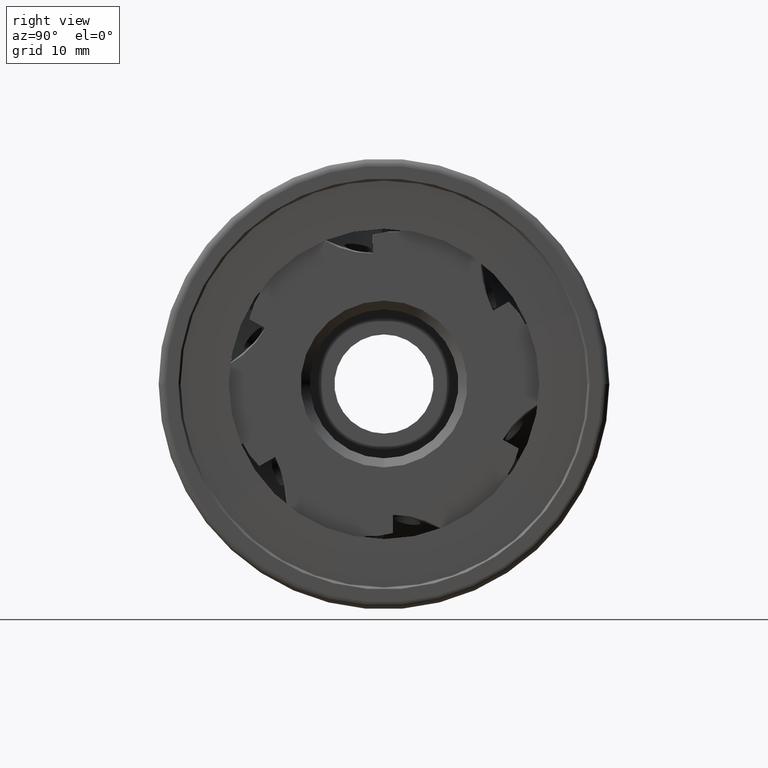
[diagram: clean part render]
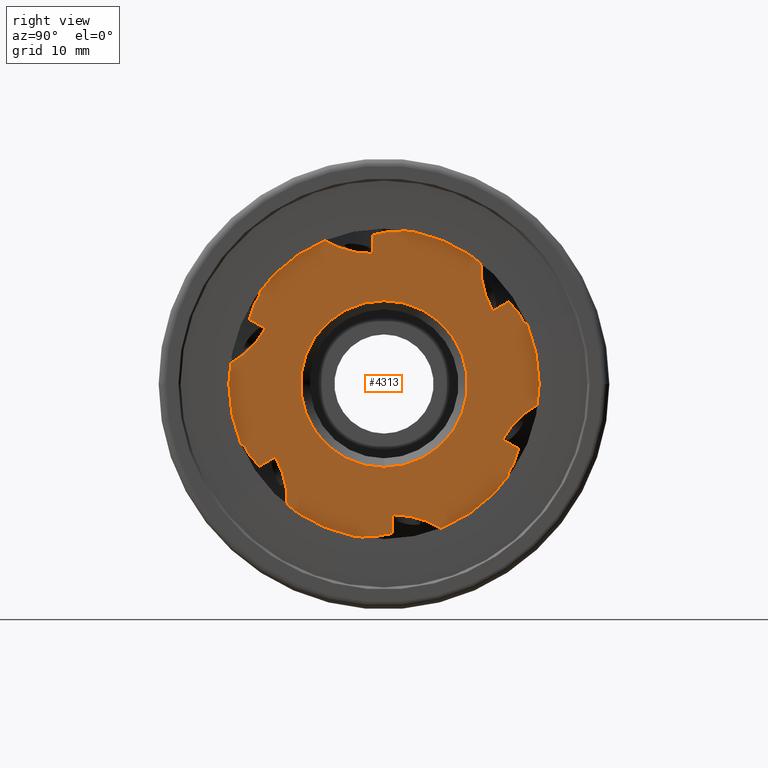
[diagram: same view with one face highlighted and labeled with its STEP entity id]
A machine part, right view. The second image highlights one B-rep face of the part: STEP entity #4313.
In plain terms, the highlighted planar face has unit normal (-1, 0, 0).
Its self-contained STEP definition (entity closure, byte-faithful):
#22 = CARTESIAN_POINT ( 'NONE',  ( -1.000000000000000900, 6.385925097127166200, -16.07232686650820600 ) ) ;
#28 = CARTESIAN_POINT ( 'NONE',  ( -1.000000000000000200, -2.129258213089093600, -16.85248515329511000 ) ) ;
#30 = CARTESIAN_POINT ( 'NONE',  ( -0.9999999999999985600, -13.15835158195599600, 6.170352790096157700 ) ) ;
#33 = CARTESIAN_POINT ( 'NONE',  ( -0.9999999999999993300, -12.06607671322673700, -8.100942084667609700 ) ) ;
#42 = CARTESIAN_POINT ( 'NONE',  ( -0.9999999999999974500, 0.9825832832952841000, -16.55157498790027800 ) ) ;
#46 = CARTESIAN_POINT ( 'NONE',  ( -0.9999999999999974500, 0.9825832832952838800, -14.50000000000000000 ) ) ;
#51 = CARTESIAN_POINT ( 'NONE',  ( -0.9999999999999993300, -15.92815803758898200, -6.737470725694436200 ) ) ;
#57 = CARTESIAN_POINT ( 'NONE',  ( -1.000000000000001600, -17.15313173829381200, 2.206762746363438500 ) ) ;
#63 = CARTESIAN_POINT ( 'NONE',  ( -1.000000000000000200, -10.72608081575969900, -13.56653679403081000 ) ) ;
#104 = VERTEX_POINT ( 'NONE', #22 ) ;
#106 = VERTEX_POINT ( 'NONE', #33 ) ;
#113 = VERTEX_POINT ( 'NONE', #28 ) ;
#123 = VERTEX_POINT ( 'NONE', #46 ) ;
#140 = VERTEX_POINT ( 'NONE', #63 ) ;
#142 = VERTEX_POINT ( 'NONE', #57 ) ;
#147 = VERTEX_POINT ( 'NONE', #30 ) ;
#154 = VERTEX_POINT ( 'NONE', #42 ) ;
#155 = VERTEX_POINT ( 'NONE', #51 ) ;
#161 = VERTEX_POINT ( 'NONE', #2051 ) ;
#167 = VERTEX_POINT ( 'NONE', #2060 ) ;
#247 = EDGE_CURVE ( 'NONE', #3144, #3235, #1856, .T. ) ;
#266 = EDGE_CURVE ( 'NONE', #3296, #3280, #1866, .T. ) ;
#271 = EDGE_CURVE ( 'NONE', #1794, #1759, #1879, .T. ) ;
#272 = EDGE_CURVE ( 'NONE', #3296, #3171, #1877, .T. ) ;
#273 = EDGE_CURVE ( 'NONE', #3280, #3261, #3841, .T. ) ;
#274 = EDGE_CURVE ( 'NONE', #3261, #3266, #1881, .T. ) ;
#275 = EDGE_CURVE ( 'NONE', #3272, #3266, #1885, .T. ) ;
#276 = EDGE_CURVE ( 'NONE', #3264, #3272, #1884, .T. ) ;
#277 = EDGE_CURVE ( 'NONE', #3293, #3264, #1882, .T. ) ;
#278 = EDGE_CURVE ( 'NONE', #3293, #3127, #1887, .T. ) ;
#279 = EDGE_CURVE ( 'NONE', #3127, #3168, #3647, .T. ) ;
#280 = EDGE_CURVE ( 'NONE', #3168, #3222, #1889, .T. ) ;
#281 = EDGE_CURVE ( 'NONE', #3265, #3222, #1894, .T. ) ;
#282 = EDGE_CURVE ( 'NONE', #3287, #3265, #1893, .T. ) ;
#283 = EDGE_CURVE ( 'NONE', #3257, #3287, #1891, .T. ) ;
#284 = EDGE_CURVE ( 'NONE', #3257, #3288, #1896, .T. ) ;
#285 = EDGE_CURVE ( 'NONE', #3288, #3277, #3860, .T. ) ;
#286 = EDGE_CURVE ( 'NONE', #3277, #3276, #1898, .T. ) ;
#287 = EDGE_CURVE ( 'NONE', #3268, #3276, #1903, .T. ) ;
#288 = EDGE_CURVE ( 'NONE', #3273, #3268, #1902, .T. ) ;
#289 = EDGE_CURVE ( 'NONE', #3247, #3273, #1900, .T. ) ;
#290 = EDGE_CURVE ( 'NONE', #3247, #147, #1905, .T. ) ;
#291 = EDGE_CURVE ( 'NONE', #147, #142, #3633, .T. ) ;
#292 = EDGE_CURVE ( 'NONE', #142, #155, #1910, .T. ) ;
#293 = EDGE_CURVE ( 'NONE', #161, #155, #1911, .T. ) ;
#294 = EDGE_CURVE ( 'NONE', #3138, #161, #1907, .T. ) ;
#295 = EDGE_CURVE ( 'NONE', #3260, #3138, #1912, .T. ) ;
#296 = EDGE_CURVE ( 'NONE', #3260, #106, #1914, .T. ) ;
#297 = EDGE_CURVE ( 'NONE', #106, #140, #3899, .T. ) ;
#298 = EDGE_CURVE ( 'NONE', #140, #167, #1919, .T. ) ;
#299 = EDGE_CURVE ( 'NONE', #113, #167, #1920, .T. ) ;
#300 = EDGE_CURVE ( 'NONE', #3242, #113, #1916, .T. ) ;
#301 = EDGE_CURVE ( 'NONE', #154, #3242, #1921, .T. ) ;
#302 = EDGE_CURVE ( 'NONE', #154, #123, #1923, .T. ) ;
#303 = EDGE_CURVE ( 'NONE', #123, #104, #3855, .T. ) ;
#304 = EDGE_CURVE ( 'NONE', #104, #3235, #1927, .T. ) ;
#305 = EDGE_CURVE ( 'NONE', #3171, #3144, #1928, .T. ) ;
#1323 = AXIS2_PLACEMENT_3D ( 'NONE', #3723, #3725, #3726 ) ;
#1324 = AXIS2_PLACEMENT_3D ( 'NONE', #3738, #3740, #3741 ) ;
#1325 = AXIS2_PLACEMENT_3D ( 'NONE', #3760, #3761, #3762 ) ;
#1326 = AXIS2_PLACEMENT_3D ( 'NONE', #3782, #3783, #3784 ) ;
#1327 = AXIS2_PLACEMENT_3D ( 'NONE', #3802, #3803, #3804 ) ;
#1328 = AXIS2_PLACEMENT_3D ( 'NONE', #4044, #4046, #4048 ) ;
#1329 = AXIS2_PLACEMENT_3D ( 'NONE', #4061, #4062, #4063 ) ;
#1498 = AXIS2_PLACEMENT_3D ( 'NONE', #7499, #7500, #7501 ) ;
#1759 = VERTEX_POINT ( 'NONE', #6697 ) ;
#1794 = VERTEX_POINT ( 'NONE', #6732 ) ;
#1856 = LINE ( 'NONE', #3567, #1857 ) ;
#1857 = VECTOR ( 'NONE', #3568, 1000.000000000000200 ) ;
#1866 = LINE ( 'NONE', #3706, #1872 ) ;
#1872 = VECTOR ( 'NONE', #3709, 1000.000000000000200 ) ;
#1877 = LINE ( 'NONE', #3722, #1883 ) ;
#1879 = CIRCLE ( 'NONE', #1323, 9.250000000000005300 ) ;
#1881 = CIRCLE ( 'NONE', #1324, 17.29449999999999900 ) ;
#1882 = LINE ( 'NONE', #3734, #1890 ) ;
#1883 = VECTOR ( 'NONE', #3715, 1000.000000000000100 ) ;
#1884 = LINE ( 'NONE', #3737, #1888 ) ;
#1885 = LINE ( 'NONE', #3728, #1886 ) ;
#1886 = VECTOR ( 'NONE', #3731, 1000.000000000000000 ) ;
#1887 = LINE ( 'NONE', #3743, #1892 ) ;
#1888 = VECTOR ( 'NONE', #3744, 1000.000000000000000 ) ;
#1889 = CIRCLE ( 'NONE', #1325, 17.29449999999999900 ) ;
#1890 = VECTOR ( 'NONE', #3746, 1000.000000000000000 ) ;
#1891 = LINE ( 'NONE', #3758, #1899 ) ;
#1892 = VECTOR ( 'NONE', #3750, 1000.000000000000100 ) ;
#1893 = LINE ( 'NONE', #3759, #1897 ) ;
#1894 = LINE ( 'NONE', #3751, #1895 ) ;
#1895 = VECTOR ( 'NONE', #3753, 1000.000000000000200 ) ;
#1896 = LINE ( 'NONE', #3763, #1901 ) ;
#1897 = VECTOR ( 'NONE', #3765, 1000.000000000000100 ) ;
#1898 = CIRCLE ( 'NONE', #1326, 17.29449999999999900 ) ;
#1899 = VECTOR ( 'NONE', #3767, 1000.000000000000000 ) ;
#1900 = LINE ( 'NONE', #3780, #1908 ) ;
#1901 = VECTOR ( 'NONE', #3770, 1000.000000000000100 ) ;
#1902 = LINE ( 'NONE', #3781, #1906 ) ;
#1903 = LINE ( 'NONE', #3772, #1904 ) ;
#1904 = VECTOR ( 'NONE', #3775, 1000.000000000000100 ) ;
#1905 = LINE ( 'NONE', #3786, #1909 ) ;
#1906 = VECTOR ( 'NONE', #3787, 1000.000000000000100 ) ;
#1907 = LINE ( 'NONE', #3801, #1915 ) ;
#1908 = VECTOR ( 'NONE', #3789, 1000.000000000000100 ) ;
#1909 = VECTOR ( 'NONE', #3791, 1000.000000000000200 ) ;
#1910 = CIRCLE ( 'NONE', #1327, 17.29449999999999900 ) ;
#1911 = LINE ( 'NONE', #3794, #1913 ) ;
#1912 = LINE ( 'NONE', #3799, #1917 ) ;
#1913 = VECTOR ( 'NONE', #3793, 1000.000000000000200 ) ;
#1914 = LINE ( 'NONE', #3806, #1918 ) ;
#1915 = VECTOR ( 'NONE', #3807, 1000.000000000000100 ) ;
#1916 = LINE ( 'NONE', #4042, #1924 ) ;
#1917 = VECTOR ( 'NONE', #3810, 1000.000000000000100 ) ;
#1918 = VECTOR ( 'NONE', #4026, 1000.000000000000000 ) ;
#1919 = CIRCLE ( 'NONE', #1328, 17.29449999999999900 ) ;
#1920 = LINE ( 'NONE', #4032, #1922 ) ;
#1921 = LINE ( 'NONE', #4040, #1925 ) ;
#1922 = VECTOR ( 'NONE', #4030, 1000.000000000000000 ) ;
#1923 = LINE ( 'NONE', #4049, #1926 ) ;
#1924 = VECTOR ( 'NONE', #4050, 1000.000000000000100 ) ;
#1925 = VECTOR ( 'NONE', #4052, 1000.000000000000200 ) ;
#1926 = VECTOR ( 'NONE', #4054, 1000.000000000000000 ) ;
#1927 = CIRCLE ( 'NONE', #1329, 17.29449999999999900 ) ;
#1928 = LINE ( 'NONE', #4056, #1930 ) ;
#1930 = VECTOR ( 'NONE', #4055, 1000.000000000000200 ) ;
#2051 = CARTESIAN_POINT ( 'NONE',  ( -0.9999999999999993300, -15.65930936619821300, -6.582250872895707000 ) ) ;
#2060 = CARTESIAN_POINT ( 'NONE',  ( -0.9999999999999995600, -2.129258213089094000, -17.16292485889257000 ) ) ;
#2675 = ORIENTED_EDGE ( 'NONE', *, *, #286, .T. ) ;
#2679 = ORIENTED_EDGE ( 'NONE', *, *, #279, .T. ) ;
#2684 = ORIENTED_EDGE ( 'NONE', *, *, #302, .T. ) ;
#2697 = ORIENTED_EDGE ( 'NONE', *, *, #266, .T. ) ;
#2702 = ORIENTED_EDGE ( 'NONE', *, *, #277, .F. ) ;
#2706 = ORIENTED_EDGE ( 'NONE', *, *, #3968, .F. ) ;
#2714 = ORIENTED_EDGE ( 'NONE', *, *, #292, .T. ) ;
#2726 = ORIENTED_EDGE ( 'NONE', *, *, #272, .F. ) ;
#2745 = ORIENTED_EDGE ( 'NONE', *, *, #273, .T. ) ;
#2747 = ORIENTED_EDGE ( 'NONE', *, *, #295, .F. ) ;
#2749 = ORIENTED_EDGE ( 'NONE', *, *, #288, .F. ) ;
#2754 = ORIENTED_EDGE ( 'NONE', *, *, #293, .F. ) ;
#2764 = ORIENTED_EDGE ( 'NONE', *, *, #280, .T. ) ;
#2776 = ORIENTED_EDGE ( 'NONE', *, *, #304, .T. ) ;
#2778 = ORIENTED_EDGE ( 'NONE', *, *, #300, .F. ) ;
#2791 = ORIENTED_EDGE ( 'NONE', *, *, #296, .T. ) ;
#2795 = ORIENTED_EDGE ( 'NONE', *, *, #287, .F. ) ;
#2800 = ORIENTED_EDGE ( 'NONE', *, *, #290, .T. ) ;
#2810 = ORIENTED_EDGE ( 'NONE', *, *, #291, .T. ) ;
#2820 = ORIENTED_EDGE ( 'NONE', *, *, #281, .F. ) ;
#2822 = ORIENTED_EDGE ( 'NONE', *, *, #274, .T. ) ;
#2828 = ORIENTED_EDGE ( 'NONE', *, *, #301, .F. ) ;
#2831 = ORIENTED_EDGE ( 'NONE', *, *, #284, .T. ) ;
#2839 = ORIENTED_EDGE ( 'NONE', *, *, #282, .F. ) ;
#2841 = ORIENTED_EDGE ( 'NONE', *, *, #275, .F. ) ;
#2849 = ORIENTED_EDGE ( 'NONE', *, *, #298, .T. ) ;
#2852 = ORIENTED_EDGE ( 'NONE', *, *, #294, .F. ) ;
#2859 = ORIENTED_EDGE ( 'NONE', *, *, #271, .F. ) ;
#2865 = ORIENTED_EDGE ( 'NONE', *, *, #297, .T. ) ;
#2870 = ORIENTED_EDGE ( 'NONE', *, *, #299, .F. ) ;
#2872 = ORIENTED_EDGE ( 'NONE', *, *, #276, .F. ) ;
#2874 = ORIENTED_EDGE ( 'NONE', *, *, #247, .F. ) ;
#2877 = ORIENTED_EDGE ( 'NONE', *, *, #305, .F. ) ;
#2878 = ORIENTED_EDGE ( 'NONE', *, *, #303, .T. ) ;
#2882 = ORIENTED_EDGE ( 'NONE', *, *, #278, .T. ) ;
#2888 = ORIENTED_EDGE ( 'NONE', *, *, #283, .F. ) ;
#2890 = ORIENTED_EDGE ( 'NONE', *, *, #285, .T. ) ;
#2893 = ORIENTED_EDGE ( 'NONE', *, *, #289, .F. ) ;
#2932 = EDGE_LOOP ( 'NONE', ( #2859, #2706 ) ) ;
#3127 = VERTEX_POINT ( 'NONE', #6856 ) ;
#3138 = VERTEX_POINT ( 'NONE', #6857 ) ;
#3144 = VERTEX_POINT ( 'NONE', #6850 ) ;
#3168 = VERTEX_POINT ( 'NONE', #6863 ) ;
#3170 = EDGE_LOOP ( 'NONE', ( #2726, #2697, #2745, #2822, #2841, #2872, #2702, #2882, #2679, #2764, #2820, #2839, #2888, #2831, #2890, #2675, #2795, #2749, #2893, #2800, #2810, #2714, #2754, #2852, #2747, #2791, #2865, #2849, #2870, #2778, #2828, #2684, #2878, #2776, #2874, #2877 ) ) ;
#3171 = VERTEX_POINT ( 'NONE', #6855 ) ;
#3222 = VERTEX_POINT ( 'NONE', #6873 ) ;
#3235 = VERTEX_POINT ( 'NONE', #6867 ) ;
#3242 = VERTEX_POINT ( 'NONE', #6871 ) ;
#3247 = VERTEX_POINT ( 'NONE', #6875 ) ;
#3257 = VERTEX_POINT ( 'NONE', #6881 ) ;
#3260 = VERTEX_POINT ( 'NONE', #6884 ) ;
#3261 = VERTEX_POINT ( 'NONE', #6885 ) ;
#3264 = VERTEX_POINT ( 'NONE', #6882 ) ;
#3265 = VERTEX_POINT ( 'NONE', #6870 ) ;
#3266 = VERTEX_POINT ( 'NONE', #6887 ) ;
#3268 = VERTEX_POINT ( 'NONE', #6880 ) ;
#3272 = VERTEX_POINT ( 'NONE', #6892 ) ;
#3273 = VERTEX_POINT ( 'NONE', #6893 ) ;
#3276 = VERTEX_POINT ( 'NONE', #6896 ) ;
#3277 = VERTEX_POINT ( 'NONE', #6897 ) ;
#3280 = VERTEX_POINT ( 'NONE', #6900 ) ;
#3287 = VERTEX_POINT ( 'NONE', #6906 ) ;
#3288 = VERTEX_POINT ( 'NONE', #6907 ) ;
#3293 = VERTEX_POINT ( 'NONE', #6912 ) ;
#3296 = VERTEX_POINT ( 'NONE', #6915 ) ;
#3567 = CARTESIAN_POINT ( 'NONE',  ( -0.9999999999999995600, 12.19730949194626900, -9.195575094244887300 ) ) ;
#3568 = DIRECTION ( 'NONE',  ( 0.0000000000000000000, 0.8746197071393900800, -0.4848096202463473300 ) ) ;
#3633 =( BOUNDED_CURVE ( )  B_SPLINE_CURVE ( 3, ( #3790, #3788, #3795, #3797 ),
 .UNSPECIFIED., .F., .F. ) 
 B_SPLINE_CURVE_WITH_KNOTS ( ( 4, 4 ),
 ( 4.712388980384689700, 5.280781540201976700 ),
 .UNSPECIFIED. ) 
 CURVE ( )  GEOMETRIC_REPRESENTATION_ITEM ( )  RATIONAL_B_SPLINE_CURVE ( ( 1.000000000000000000, 0.9732582097140916000, 0.9732582097140916000, 1.000000000000000000 ) ) 
 REPRESENTATION_ITEM ( '' )  );
#3647 =( BOUNDED_CURVE ( )  B_SPLINE_CURVE ( 3, ( #3752, #3748, #3745, #3755 ),
 .UNSPECIFIED., .F., .F. ) 
 B_SPLINE_CURVE_WITH_KNOTS ( ( 4, 4 ),
 ( 4.712388980384689700, 5.280781540201976700 ),
 .UNSPECIFIED. ) 
 CURVE ( )  GEOMETRIC_REPRESENTATION_ITEM ( )  RATIONAL_B_SPLINE_CURVE ( ( 1.000000000000000000, 0.9732582097140916000, 0.9732582097140916000, 1.000000000000000000 ) ) 
 REPRESENTATION_ITEM ( '' )  );
#3706 = CARTESIAN_POINT ( 'NONE',  ( -0.9999999999999995600, 13.70596018607520400, -6.473897196012983600 ) ) ;
#3709 = DIRECTION ( 'NONE',  ( 0.0000000000000000000, -0.8746197071393901900, 0.4848096202463472200 ) ) ;
#3715 = DIRECTION ( 'NONE',  ( -0.0000000000000000000, -0.3111731523422361400, -0.9503532339406203200 ) ) ;
#3720 = CARTESIAN_POINT ( 'NONE',  ( -0.9999999999999991100, 15.46121502616972200, -3.126642390339627700 ) ) ;
#3721 = CARTESIAN_POINT ( 'NONE',  ( -0.9999999999999991100, 14.09303403149090700, -4.484141015121171100 ) ) ;
#3722 = CARTESIAN_POINT ( 'NONE',  ( -0.9999999999999995600, 17.29831140335493000, -0.001247963761729629200 ) ) ;
#3723 = CARTESIAN_POINT ( 'NONE',  ( -0.9999999999999988900, 0.0000000000000000000, 0.0000000000000000000 ) ) ;
#3725 = DIRECTION ( 'NONE',  ( 1.000000000000000000, -0.0000000000000000000, -0.0000000000000000000 ) ) ;
#3726 = DIRECTION ( 'NONE',  ( 0.0000000000000000000, 0.0000000000000000000, -1.000000000000000000 ) ) ;
#3728 = CARTESIAN_POINT ( 'NONE',  ( -0.9999999999999995600, 14.03550410654467000, 5.644746469123081300 ) ) ;
#3730 = CARTESIAN_POINT ( 'NONE',  ( -0.9999999999999993300, 13.15835158195595200, -6.170352790096257100 ) ) ;
#3731 = DIRECTION ( 'NONE',  ( 0.0000000000000000000, 0.8660254037844432600, 0.4999999999999920100 ) ) ;
#3732 = CARTESIAN_POINT ( 'NONE',  ( -1.000000000000000400, 17.15313173829379800, -2.206762746363572200 ) ) ;
#3734 = CARTESIAN_POINT ( 'NONE',  ( -0.9999999999999995600, 19.83673155912758900, 2.199825526165680100 ) ) ;
#3737 = CARTESIAN_POINT ( 'NONE',  ( -0.9999999999999995600, 18.92474102342494600, 0.9441985113748739800 ) ) ;
#3738 = CARTESIAN_POINT ( 'NONE',  ( -1.000000000000000000, 0.0000000000000000000, 0.0000000000000000000 ) ) ;
#3740 = DIRECTION ( 'NONE',  ( 1.000000000000000000, -0.0000000000000000000, -0.0000000000000000000 ) ) ;
#3741 = DIRECTION ( 'NONE',  ( 0.0000000000000000000, 0.0000000000000000000, -1.000000000000000000 ) ) ;
#3743 = CARTESIAN_POINT ( 'NONE',  ( -0.9999999999999995600, 12.47958335835250500, 8.339680257542548600 ) ) ;
#3744 = DIRECTION ( 'NONE',  ( 0.0000000000000000000, 0.5011852504991912700, -0.8653400168038358800 ) ) ;
#3745 = CARTESIAN_POINT ( 'NONE',  ( -0.9999999999999991100, 10.64317004083704400, 11.64250807190417100 ) ) ;
#3746 = DIRECTION ( 'NONE',  ( -0.0000000000000000000, 0.6543456949043681100, -0.7561955511374816000 ) ) ;
#3748 = CARTESIAN_POINT ( 'NONE',  ( -0.9999999999999991100, 11.10210816711997900, 9.770584583422873900 ) ) ;
#3750 = DIRECTION ( 'NONE',  ( 0.0000000000000000000, -0.8660254037844432600, -0.4999999999999921200 ) ) ;
#3751 = CARTESIAN_POINT ( 'NONE',  ( -0.9999999999999995600, 2.134201587809067700, -0.2646239931158446100 ) ) ;
#3752 = CARTESIAN_POINT ( 'NONE',  ( -0.9999999999999985600, 12.06607671322679400, 8.100942084667526200 ) ) ;
#3753 = DIRECTION ( 'NONE',  ( 0.0000000000000000000, -0.01745240643727678100, 0.9998476951563912700 ) ) ;
#3755 = CARTESIAN_POINT ( 'NONE',  ( -0.9999999999999995600, 10.72608081575979400, 13.56653679403073400 ) ) ;
#3758 = CARTESIAN_POINT ( 'NONE',  ( -0.9999999999999995600, 13.18121082715900400, 19.56963922418243500 ) ) ;
#3759 = CARTESIAN_POINT ( 'NONE',  ( -0.9999999999999995600, 16.97124249951800200, 17.17201727254457600 ) ) ;
#3760 = CARTESIAN_POINT ( 'NONE',  ( -1.000000000000000000, 0.0000000000000000000, 0.0000000000000000000 ) ) ;
#3761 = DIRECTION ( 'NONE',  ( 1.000000000000000000, -0.0000000000000000000, -0.0000000000000000000 ) ) ;
#3762 = DIRECTION ( 'NONE',  ( 0.0000000000000000000, 0.0000000000000000000, -1.000000000000000000 ) ) ;
#3763 = CARTESIAN_POINT ( 'NONE',  ( -0.9999999999999995600, -0.9771659600428632700, -0.3189331156791305200 ) ) ;
#3765 = DIRECTION ( 'NONE',  ( 0.0000000000000000000, 0.9998228630405489000, 0.01882133208356322500 ) ) ;
#3766 = CARTESIAN_POINT ( 'NONE',  ( -0.9999999999999991100, -5.022855774501521400, 14.95312618120645200 ) ) ;
#3767 = DIRECTION ( 'NONE',  ( -0.0000000000000000000, 0.9786166193323898600, 0.2056927620662533900 ) ) ;
#3769 = CARTESIAN_POINT ( 'NONE',  ( -0.9999999999999991100, -3.163136982498851800, 14.44699599523032100 ) ) ;
#3770 = DIRECTION ( 'NONE',  ( 0.0000000000000000000, 0.01745240643727690600, -0.9998476951563912700 ) ) ;
#3772 = CARTESIAN_POINT ( 'NONE',  ( -0.9999999999999995600, 14.26187922333464200, -5.470992704732564600 ) ) ;
#3773 = CARTESIAN_POINT ( 'NONE',  ( -0.9999999999999997800, -1.235493524442500500, 14.48064313694913200 ) ) ;
#3775 = DIRECTION ( 'NONE',  ( 0.0000000000000000000, -0.8746197071393935200, 0.4848096202463408900 ) ) ;
#3776 = CARTESIAN_POINT ( 'NONE',  ( -1.000000000000000700, -6.665453270671012100, 15.95842921300530800 ) ) ;
#3780 = CARTESIAN_POINT ( 'NONE',  ( -0.9999999999999995600, -13.94910243583745500, 10.23005963811380100 ) ) ;
#3781 = CARTESIAN_POINT ( 'NONE',  ( -0.9999999999999995600, -10.70328049485758400, 15.46934973310622800 ) ) ;
#3782 = CARTESIAN_POINT ( 'NONE',  ( -1.000000000000000000, 0.0000000000000000000, 0.0000000000000000000 ) ) ;
#3783 = DIRECTION ( 'NONE',  ( 1.000000000000000000, -0.0000000000000000000, -0.0000000000000000000 ) ) ;
#3784 = DIRECTION ( 'NONE',  ( 0.0000000000000000000, 0.0000000000000000000, -1.000000000000000000 ) ) ;
#3786 = CARTESIAN_POINT ( 'NONE',  ( -0.9999999999999995600, 12.75322852920573000, -8.192670602964478000 ) ) ;
#3787 = DIRECTION ( 'NONE',  ( 0.0000000000000000000, 0.4836116798028435300, 0.8752826647193875400 ) ) ;
#3788 = CARTESIAN_POINT ( 'NONE',  ( -0.9999999999999991100, -14.09303403149094400, 4.484141015121064600 ) ) ;
#3789 = DIRECTION ( 'NONE',  ( -0.0000000000000000000, 0.3111731523422290300, 0.9503532339406226500 ) ) ;
#3790 = CARTESIAN_POINT ( 'NONE',  ( -0.9999999999999985600, -13.15835158195599600, 6.170352790096157700 ) ) ;
#3791 = DIRECTION ( 'NONE',  ( 0.0000000000000000000, 0.8746197071393936300, -0.4848096202463407800 ) ) ;
#3793 = DIRECTION ( 'NONE',  ( 0.0000000000000000000, -0.8660254037844397100, -0.4999999999999979500 ) ) ;
#3794 = CARTESIAN_POINT ( 'NONE',  ( -0.9999999999999995600, 11.90624589345549600, 9.332729876626777000 ) ) ;
#3795 = CARTESIAN_POINT ( 'NONE',  ( -0.9999999999999991100, -15.46121502616974700, 3.126642390339511300 ) ) ;
#3797 = CARTESIAN_POINT ( 'NONE',  ( -1.000000000000001600, -17.15313173829381200, 2.206762746363438500 ) ) ;
#3799 = CARTESIAN_POINT ( 'NONE',  ( -0.9999999999999995600, -5.026818630280368800, -19.31492287721405200 ) ) ;
#3801 = CARTESIAN_POINT ( 'NONE',  ( -0.9999999999999995600, -10.23644580263266600, -15.94529745606370100 ) ) ;
#3802 = CARTESIAN_POINT ( 'NONE',  ( -1.000000000000000000, 0.0000000000000000000, 0.0000000000000000000 ) ) ;
#3803 = DIRECTION ( 'NONE',  ( 1.000000000000000000, -0.0000000000000000000, -0.0000000000000000000 ) ) ;
#3804 = DIRECTION ( 'NONE',  ( 0.0000000000000000000, 0.0000000000000000000, -1.000000000000000000 ) ) ;
#3806 = CARTESIAN_POINT ( 'NONE',  ( -0.9999999999999995600, 13.46216664164767000, 6.637796088207335500 ) ) ;
#3807 = DIRECTION ( 'NONE',  ( 0.0000000000000000000, -0.5011852504991970400, 0.8653400168038324300 ) ) ;
#3809 = CARTESIAN_POINT ( 'NONE',  ( -0.9999999999999991100, -11.10210816711991400, -9.770584583422946800 ) ) ;
#3810 = DIRECTION ( 'NONE',  ( -0.0000000000000000000, -0.6543456949043733300, 0.7561955511374770500 ) ) ;
#3812 = CARTESIAN_POINT ( 'NONE',  ( -0.9999999999999993300, -12.06607671322673700, -8.100942084667609700 ) ) ;
#3841 =( BOUNDED_CURVE ( )  B_SPLINE_CURVE ( 3, ( #3730, #3721, #3720, #3732 ),
 .UNSPECIFIED., .F., .F. ) 
 B_SPLINE_CURVE_WITH_KNOTS ( ( 4, 4 ),
 ( 4.712388980384689700, 5.280781540201976700 ),
 .UNSPECIFIED. ) 
 CURVE ( )  GEOMETRIC_REPRESENTATION_ITEM ( )  RATIONAL_B_SPLINE_CURVE ( ( 1.000000000000000000, 0.9732582097140916000, 0.9732582097140916000, 1.000000000000000000 ) ) 
 REPRESENTATION_ITEM ( '' )  );
#3855 =( BOUNDED_CURVE ( )  B_SPLINE_CURVE ( 3, ( #4053, #4051, #4057, #4058 ),
 .UNSPECIFIED., .F., .F. ) 
 B_SPLINE_CURVE_WITH_KNOTS ( ( 4, 4 ),
 ( 4.712388980384689700, 5.280781540201977500 ),
 .UNSPECIFIED. ) 
 CURVE ( )  GEOMETRIC_REPRESENTATION_ITEM ( )  RATIONAL_B_SPLINE_CURVE ( ( 1.000000000000000000, 0.9732582097140914900, 0.9732582097140914900, 1.000000000000000000 ) ) 
 REPRESENTATION_ITEM ( '' )  );
#3860 =( BOUNDED_CURVE ( )  B_SPLINE_CURVE ( 3, ( #3773, #3769, #3766, #3776 ),
 .UNSPECIFIED., .F., .F. ) 
 B_SPLINE_CURVE_WITH_KNOTS ( ( 4, 4 ),
 ( 4.712388980384687900, 5.280781540201975800 ),
 .UNSPECIFIED. ) 
 CURVE ( )  GEOMETRIC_REPRESENTATION_ITEM ( )  RATIONAL_B_SPLINE_CURVE ( ( 1.000000000000000000, 0.9732582097140914900, 0.9732582097140914900, 1.000000000000000000 ) ) 
 REPRESENTATION_ITEM ( '' )  );
#3899 =( BOUNDED_CURVE ( )  B_SPLINE_CURVE ( 3, ( #3812, #3809, #4033, #4035 ),
 .UNSPECIFIED., .F., .F. ) 
 B_SPLINE_CURVE_WITH_KNOTS ( ( 4, 4 ),
 ( 4.712388980384689700, 5.280781540201977500 ),
 .UNSPECIFIED. ) 
 CURVE ( )  GEOMETRIC_REPRESENTATION_ITEM ( )  RATIONAL_B_SPLINE_CURVE ( ( 1.000000000000000000, 0.9732582097140914900, 0.9732582097140914900, 1.000000000000000000 ) ) 
 REPRESENTATION_ITEM ( '' )  );
#3968 = EDGE_CURVE ( 'NONE', #1759, #1794, #5380, .T. ) ;
#4026 = DIRECTION ( 'NONE',  ( 0.0000000000000000000, 0.8660254037844397100, 0.4999999999999981700 ) ) ;
#4030 = DIRECTION ( 'NONE',  ( 0.0000000000000000000, 6.094724432431844000E-018, -1.000000000000000000 ) ) ;
#4032 = CARTESIAN_POINT ( 'NONE',  ( -0.9999999999999995600, -2.129258213089093600, -1.183824537509627900E-016 ) ) ;
#4033 = CARTESIAN_POINT ( 'NONE',  ( -0.9999999999999991100, -10.64317004083696200, -11.64250807190424400 ) ) ;
#4035 = CARTESIAN_POINT ( 'NONE',  ( -1.000000000000000200, -10.72608081575969900, -13.56653679403081000 ) ) ;
#4040 = CARTESIAN_POINT ( 'NONE',  ( -0.9999999999999995600, 19.77972310424079800, -12.94200356999751400 ) ) ;
#4042 = CARTESIAN_POINT ( 'NONE',  ( -0.9999999999999995600, 17.31753715613809400, -16.82585953810487900 ) ) ;
#4044 = CARTESIAN_POINT ( 'NONE',  ( -1.000000000000000000, 0.0000000000000000000, 0.0000000000000000000 ) ) ;
#4046 = DIRECTION ( 'NONE',  ( 1.000000000000000000, -0.0000000000000000000, -0.0000000000000000000 ) ) ;
#4048 = DIRECTION ( 'NONE',  ( 0.0000000000000000000, 0.0000000000000000000, -1.000000000000000000 ) ) ;
#4049 = CARTESIAN_POINT ( 'NONE',  ( -0.9999999999999995600, 0.9825832832952817700, -2.057617126541298000E-015 ) ) ;
#4050 = DIRECTION ( 'NONE',  ( 0.0000000000000000000, -0.9999990627129703400, -0.001369150532458359100 ) ) ;
#4051 = CARTESIAN_POINT ( 'NONE',  ( -0.9999999999999991100, 2.910520375508954100, -14.50000000000000400 ) ) ;
#4052 = DIRECTION ( 'NONE',  ( -0.0000000000000000000, -0.9820574049660159000, -0.1885822190754329100 ) ) ;
#4053 = CARTESIAN_POINT ( 'NONE',  ( -0.9999999999999974500, 0.9825832832952838800, -14.50000000000000000 ) ) ;
#4054 = DIRECTION ( 'NONE',  ( 0.0000000000000000000, -1.261419588069703600E-016, 1.000000000000000000 ) ) ;
#4055 = DIRECTION ( 'NONE',  ( 0.0000000000000000000, -0.4836116798028499700, -0.8752826647193839800 ) ) ;
#4056 = CARTESIAN_POINT ( 'NONE',  ( -0.9999999999999995600, 18.79296469875616900, -0.8279325745850035800 ) ) ;
#4057 = CARTESIAN_POINT ( 'NONE',  ( -0.9999999999999991100, 4.761122733616020700, -15.03850966811438300 ) ) ;
#4058 = CARTESIAN_POINT ( 'NONE',  ( -1.000000000000000900, 6.385925097127166200, -16.07232686650820600 ) ) ;
#4061 = CARTESIAN_POINT ( 'NONE',  ( -1.000000000000000000, 0.0000000000000000000, 0.0000000000000000000 ) ) ;
#4062 = DIRECTION ( 'NONE',  ( 1.000000000000000000, -0.0000000000000000000, -0.0000000000000000000 ) ) ;
#4063 = DIRECTION ( 'NONE',  ( 0.0000000000000000000, 0.0000000000000000000, -1.000000000000000000 ) ) ;
#4313 = ADVANCED_FACE ( 'NONE', ( #5529, #5533 ), #7917, .F. ) ;
#5380 = CIRCLE ( 'NONE', #1498, 9.250000000000005300 ) ;
#5529 = FACE_BOUND ( 'NONE', #2932, .T. ) ;
#5533 = FACE_OUTER_BOUND ( 'NONE', #3170, .T. ) ;
#6697 = CARTESIAN_POINT ( 'NONE',  ( -0.9999999999999988900, 1.132798289211302300E-015, 9.250000000000005300 ) ) ;
#6732 = CARTESIAN_POINT ( 'NONE',  ( -0.9999999999999988900, 0.0000000000000000000, -9.250000000000005300 ) ) ;
#6850 = CARTESIAN_POINT ( 'NONE',  ( -0.9999999999999988900, 13.70723076365174900, -10.03253812213233300 ) ) ;
#6855 = CARTESIAN_POINT ( 'NONE',  ( -0.9999999999999983300, 14.45969291559809600, -8.670666387097785600 ) ) ;
#6856 = CARTESIAN_POINT ( 'NONE',  ( -0.9999999999999985600, 12.06607671322679400, 8.100942084667526200 ) ) ;
#6857 = CARTESIAN_POINT ( 'NONE',  ( -0.9999999999999991100, -14.87950410535726000, -7.928652621246659900 ) ) ;
#6863 = CARTESIAN_POINT ( 'NONE',  ( -0.9999999999999995600, 10.72608081575979400, 13.56653679403073400 ) ) ;
#6867 = CARTESIAN_POINT ( 'NONE',  ( -0.9999999999999991100, 13.97874744804583900, -10.18304227791242800 ) ) ;
#6870 = CARTESIAN_POINT ( 'NONE',  ( -1.000000000000001100, 1.834817496376468500, 16.88707911792415600 ) ) ;
#6871 = CARTESIAN_POINT ( 'NONE',  ( -0.9999999999999995600, -0.5733374648969054000, -16.85035486157756400 ) ) ;
#6873 = CARTESIAN_POINT ( 'NONE',  ( -1.000000000000000200, 1.829399576460112500, 17.19747154205081300 ) ) ;
#6875 = CARTESIAN_POINT ( 'NONE',  ( -0.9999999999999974500, -14.95269949704784200, 7.164976080886982700 ) ) ;
#6880 = CARTESIAN_POINT ( 'NONE',  ( -0.9999999999999993300, -13.70723076365182400, 10.03253812213223200 ) ) ;
#6881 = CARTESIAN_POINT ( 'NONE',  ( -0.9999999999999983300, -1.271298444967889200, 16.53190566004173000 ) ) ;
#6882 = CARTESIAN_POINT ( 'NONE',  ( -0.9999999999999986700, 14.87950410535731300, 7.928652621246555100 ) ) ;
#6884 = CARTESIAN_POINT ( 'NONE',  ( -0.9999999999999983300, -13.84279277051713200, -9.126729578617744900 ) ) ;
#6885 = CARTESIAN_POINT ( 'NONE',  ( -1.000000000000000400, 17.15313173829379800, -2.206762746363572200 ) ) ;
#6887 = CARTESIAN_POINT ( 'NONE',  ( -0.9999999999999995600, 15.92815803758903000, 6.737470725694323400 ) ) ;
#6892 = CARTESIAN_POINT ( 'NONE',  ( -1.000000000000000200, 15.65930936619826300, 6.582250872895594200 ) ) ;
#6893 = CARTESIAN_POINT ( 'NONE',  ( -0.9999999999999991100, -14.45969291559816000, 8.670666387097677200 ) ) ;
#6896 = CARTESIAN_POINT ( 'NONE',  ( -0.9999999999999997800, -13.97874744804591700, 10.18304227791232500 ) ) ;
#6897 = CARTESIAN_POINT ( 'NONE',  ( -1.000000000000000700, -6.665453270671012100, 15.95842921300530800 ) ) ;
#6900 = CARTESIAN_POINT ( 'NONE',  ( -0.9999999999999993300, 13.15835158195595200, -6.170352790096257100 ) ) ;
#6906 = CARTESIAN_POINT ( 'NONE',  ( -1.000000000000000900, 0.2791709011673850800, 16.85779458937872000 ) ) ;
#6907 = CARTESIAN_POINT ( 'NONE',  ( -0.9999999999999997800, -1.235493524442500500, 14.48064313694913200 ) ) ;
#6912 = CARTESIAN_POINT ( 'NONE',  ( -0.9999999999999974500, 13.84279277051719200, 9.126729578617647200 ) ) ;
#6915 = CARTESIAN_POINT ( 'NONE',  ( -0.9999999999999991100, 14.95269949704778900, -7.164976080887094600 ) ) ;
#7499 = CARTESIAN_POINT ( 'NONE',  ( -0.9999999999999988900, 0.0000000000000000000, 0.0000000000000000000 ) ) ;
#7500 = DIRECTION ( 'NONE',  ( 1.000000000000000000, -0.0000000000000000000, -0.0000000000000000000 ) ) ;
#7501 = DIRECTION ( 'NONE',  ( 0.0000000000000000000, 0.0000000000000000000, -1.000000000000000000 ) ) ;
#7912 = DIRECTION ( 'NONE',  ( -1.000000000000000000, 0.0000000000000000000, 0.0000000000000000000 ) ) ;
#7915 = CARTESIAN_POINT ( 'NONE',  ( -0.9999999999999995600, 17.29449999999999900, 0.0000000000000000000 ) ) ;
#7917 = PLANE ( 'NONE',  #8003 ) ;
#7919 = DIRECTION ( 'NONE',  ( 0.0000000000000000000, 0.0000000000000000000, 1.000000000000000000 ) ) ;
#8003 = AXIS2_PLACEMENT_3D ( 'NONE', #7915, #7912, #7919 ) ;